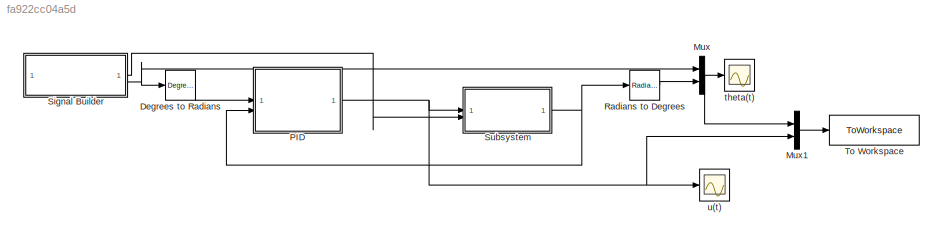
MODEL slx_fa922cc04a5d
KIND model
CONFIG AbsTol = auto
CONFIG EnableMultiTasking = off
CONFIG FixedStep = 0.001
CONFIG InitFcn = alpha = 20.70;\nbeta =  1.27;\ngamma = 0.53;
CONFIG MaxStep = auto
CONFIG MinStep = auto
CONFIG RelTol = 1e-3
CONFIG SampleTimeConstraint = Unconstrained
CONFIG SolverName = ode4
CONFIG StartTime = 0.0
CONFIG StopTime = 80
BLOCK [Reference] Degrees to Radians  REF=simulink_extras/Transformations/Degrees to
Radians
  SourceBlock = simulink_extras/Transformations/Degrees to\nRadians
  SourceType = DegreesToRadians
BLOCK [Mux] Mux
  DisplayOption = bar
  Inputs = 2
BLOCK [Mux] Mux1
  DisplayOption = bar
  Inputs = 2
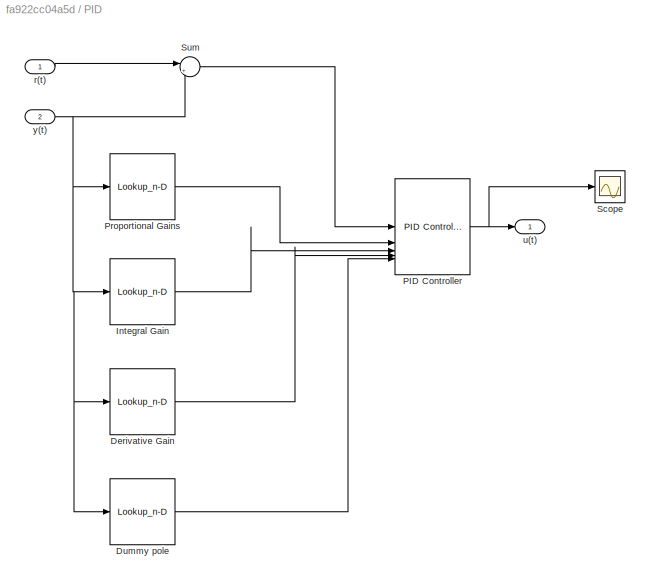
BLOCK [SubSystem] PID
BLOCK [Lookup_n-D] PID/Derivative Gain
  BreakpointsForDimension1 = deg2rad([15 37.5 55 70 85])
  BreakpointsForDimension2 = [-5:5]
  BreakpointsForDimension3 = [-5:5]
  BreakpointsForDimension4 = [-5:5]
  InputPortMap = u0
  InternalRulePriority = Speed
  NumberOfTableDimensions = 1
  RndMeth = Simplest
  Table = [Kd_pid1 Kd_pid2 Kd_pid3 Kd_pid4 Kd_pid5]
BLOCK [Lookup_n-D] PID/Dummy pole
  BreakpointsForDimension1 = deg2rad([15 37.5 55 70 85])
  BreakpointsForDimension2 = [-5:5]
  BreakpointsForDimension3 = [-5:5]
  BreakpointsForDimension4 = [-5:5]
  InputPortMap = u0
  InternalRulePriority = Speed
  NumberOfTableDimensions = 1
  RndMeth = Simplest
  Table = [N_pid1 N_pid2 N_pid3 N_pid4 N_pid5]
BLOCK [Lookup_n-D] PID/Integral Gain
  BreakpointsForDimension1 = deg2rad([15 37.5 55 70 85])
  BreakpointsForDimension2 = [-5:5]
  BreakpointsForDimension3 = [-5:5]
  BreakpointsForDimension4 = [-5:5]
  InputPortMap = u0
  InternalRulePriority = Speed
  NumberOfTableDimensions = 1
  RndMeth = Simplest
  Table = [Ki_pid1 Ki_pid2 Ki_pid3 Ki_pid4 Ki_pid5]
BLOCK [Reference] PID/PID Controller  REF=slpidlib/PID Controller
  SourceBlock = slpidlib/PID Controller
  SourceType = PID 1dof
BLOCK [Lookup_n-D] PID/Proportional Gains
  BreakpointsForDimension1 = deg2rad([15 37.5 55 70 85])
  BreakpointsForDimension2 = [-5:5]
  BreakpointsForDimension3 = [-5:5]
  BreakpointsForDimension4 = [-5:5]
  InputPortMap = u0
  InternalRulePriority = Speed
  NumberOfTableDimensions = 1
  RndMeth = Simplest
  Table = [Kp_pid1 Kp_pid2 Kp_pid3 Kp_pid4 Kp_pid5]
BLOCK [Scope] PID/Scope
  Floating = off
  NumInputPorts = 1
  ScopeSpecificationString = Simulink.scopes.TimeScopeBlockCfg('CurrentConfiguration', extmgr.ConfigurationSet(extmgr.Configuration('Core','General UI',true),extmgr.Configuration('Core','Source UI',true),extmgr.Configuration('Sources','WiredSimulink',true,'DataLoggingVariableName','ScopeData2'),extmgr.Configuration('Visuals','Time Domain',true,'SerializedDisplays',{struct('MinYLimReal','-269.2737','MaxYLimReal','2388.86768','...<+1422ch>
BLOCK [Sum] PID/Sum
  Inputs = |+-
BLOCK [Inport] PID/r(t)
BLOCK [Outport] PID/u(t)
BLOCK [Inport] PID/y(t)
  Port = 2
BLOCK [Reference] Radians to Degrees  REF=simulink_extras/Transformations/Radians
to Degrees
  SourceBlock = simulink_extras/Transformations/Radians\nto Degrees
  SourceType = RadiansToDegrees
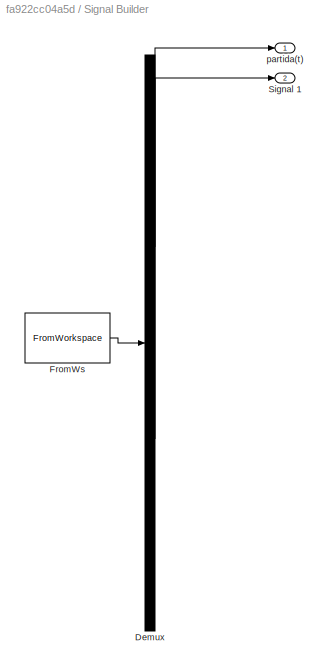
BLOCK [SubSystem] Signal Builder
  ClipboardFcn = sigbuilder_block('clipboard');
  CloseFcn = sigbuilder_block('close');
  ContinueFcn = sigbuilder_block('continue');
  CopyFcn = sigbuilder_block('copy');
  DeleteFcn = sigbuilder_block('delete');
  LoadFcn = sigbuilder_block('load',[5.4 36 1141.2 516.6 ]);
  MaskHideContents = on
  ModelCloseFcn = sigbuilder_block('modelClose');
  NameChangeFcn = sigbuilder_block('namechange');
  OpenFcn = sigbuilder_block('open',[19.8 162 1087.2 352.8 ]);
  PauseFcn = sigbuilder_block('pause');
  PreSaveFcn = sigbuilder_block('preSave');
  StartFcn = sigbuilder_block('start');
  StopFcn = sigbuilder_block('stop');
  Tag = STV Subsys
BLOCK [Demux] Signal Builder/Demux
  DisplayOption = none
  Outputs = 2
  Tag = STV Demux
BLOCK [FromWorkspace] Signal Builder/FromWs
  Tag = STV FromWs
  VariableName = tuvar
BLOCK [Outport] Signal Builder/Signal 1
  Port = 2
  Tag = STV Outport
BLOCK [Outport] Signal Builder/partida(t)
  Tag = STV Outport
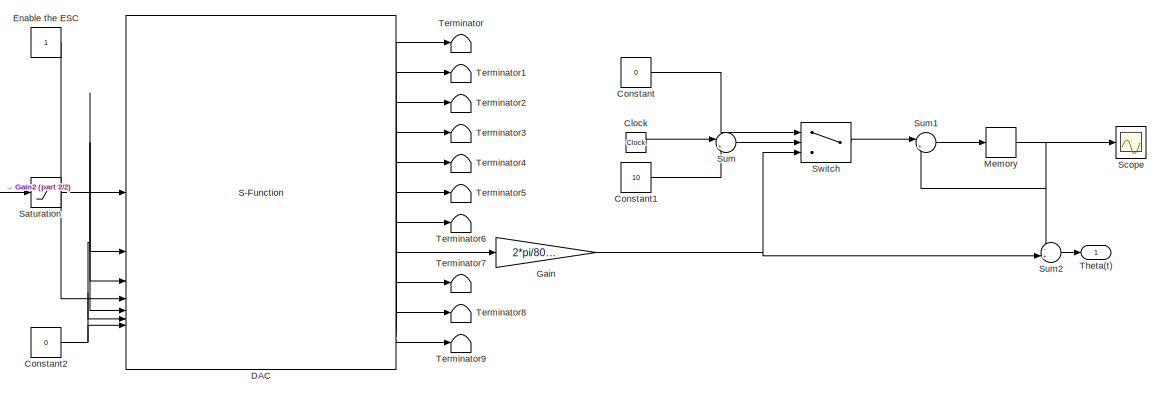
[diagram: Subsystem - part 1/2, right side, full height]
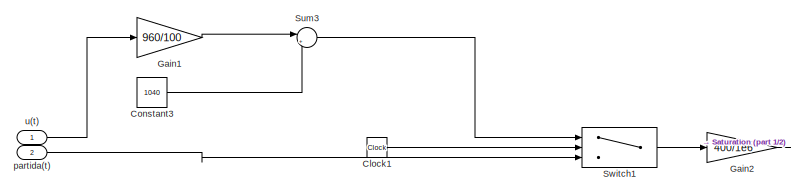
[diagram: Subsystem - part 2/2, middle left region]
BLOCK [SubSystem] Subsystem
BLOCK [Clock] Subsystem/Clock
BLOCK [Clock] Subsystem/Clock1
BLOCK [Constant] Subsystem/Constant
  Value = 0
BLOCK [Constant] Subsystem/Constant1
  Value = 10
BLOCK [Constant] Subsystem/Constant2
  Value = 0
BLOCK [Constant] Subsystem/Constant3
  Value = 1040
BLOCK [S-Function] Subsystem/DAC
  EnableBusSupport = off
  FunctionName = dacSfunction
  Parameters = serialPort,sampleTime,gpioOutCh1FinalState,gpioOutCh2FinalState,gpioOutCh3FinalState,pwmFrequency,pwmCh1FinalDuty,pwmCh2FinalDuty,pwmCh3FinalDuty,pwmCh4FinalDuty,enc1Mode,enc1ResetCount,enc1Direction,enc1Quadrature,enc1Filter,enc2Mode,enc2ResetCount,enc2Direction,enc2Quadrature,enc2Filter,enc3Mode,enc3ResetCount,enc3Direction,enc3Quadrature,enc3Filter
  SFcnIsStateOwnerBlock = off
  SFunctionDeploymentMode = off
BLOCK [Constant] Subsystem/Enable the ESC
BLOCK [Gain] Subsystem/Gain
  Gain = 2*pi/8000
BLOCK [Gain] Subsystem/Gain1
  Gain = 960/100
BLOCK [Gain] Subsystem/Gain2
  Gain = 400/1e6
BLOCK [Memory] Subsystem/Memory
BLOCK [Saturate] Subsystem/Saturation
  LowerLimit = 0
  UpperLimit = 0.8
BLOCK [Scope] Subsystem/Scope
  Floating = off
  NumInputPorts = 1
  ScopeSpecificationString = Simulink.scopes.TimeScopeBlockCfg('CurrentConfiguration', extmgr.ConfigurationSet(extmgr.Configuration('Core','General UI',true),extmgr.Configuration('Core','Source UI',true),extmgr.Configuration('Sources','WiredSimulink',true),extmgr.Configuration('Visuals','Time Domain',true),extmgr.Configuration('Tools','Plot Navigation',true),extmgr.Configuration('Tools','Measurements',true)),'Version','2022a'...<+1ch>
BLOCK [Sum] Subsystem/Sum
  Inputs = |+-
BLOCK [Sum] Subsystem/Sum1
  Inputs = |++
BLOCK [Sum] Subsystem/Sum2
  Inputs = -+|
BLOCK [Sum] Subsystem/Sum3
  Inputs = |++
BLOCK [Switch] Subsystem/Switch
  Criteria = u2 ~= 0
  InputSameDT = off
  SaturateOnIntegerOverflow = off
BLOCK [Switch] Subsystem/Switch1
  InputSameDT = off
  SaturateOnIntegerOverflow = off
  Threshold = 10
BLOCK [Terminator] Subsystem/Terminator
BLOCK [Terminator] Subsystem/Terminator1
BLOCK [Terminator] Subsystem/Terminator2
BLOCK [Terminator] Subsystem/Terminator3
BLOCK [Terminator] Subsystem/Terminator4
BLOCK [Terminator] Subsystem/Terminator5
  NameLocation = left
BLOCK [Terminator] Subsystem/Terminator6
BLOCK [Terminator] Subsystem/Terminator7
BLOCK [Terminator] Subsystem/Terminator8
BLOCK [Terminator] Subsystem/Terminator9
BLOCK [Outport] Subsystem/Theta(t)
BLOCK [Inport] Subsystem/partida(t)
  Port = 2
BLOCK [Inport] Subsystem/u(t)
BLOCK [ToWorkspace] To Workspace
  FixptAsFi = on
  MaxDataPoints = inf
  SampleTime = -1
  SaveFormat = Timeseries
  VariableName = Data
BLOCK [Scope] theta(t)
  Floating = off
  NumInputPorts = 1
  ScopeSpecificationString = Simulink.scopes.TimeScopeBlockCfg('CurrentConfiguration', extmgr.ConfigurationSet(extmgr.Configuration('Core','General UI',true),extmgr.Configuration('Core','Source UI',true),extmgr.Configuration('Sources','WiredSimulink',true,'DataLoggingVariableName','ScopeData1','DataLoggingSaveFormat','Array','DataLoggingDecimation','1','DataLoggingDecimateData',true),extmgr.Configuration('Visuals','Time Domai...<+1740ch>
BLOCK [Scope] u(t)
  Floating = off
  NumInputPorts = 1
  ScopeSpecificationString = Simulink.scopes.TimeScopeBlockCfg('CurrentConfiguration', extmgr.ConfigurationSet(extmgr.Configuration('Core','General UI',true),extmgr.Configuration('Core','Source UI',true),extmgr.Configuration('Sources','WiredSimulink',true,'DataLoggingSaveFormat','Array','DataLoggingDecimation','1','DataLoggingDecimateData',true),extmgr.Configuration('Visuals','Time Domain',true,'SerializedDisplays',{struct('M...<+1619ch>
LINE Degrees to Radians:1 -> PID:1
LINE Mux1:1 -> To Workspace:1
NET Mux:1 -> Mux1:1, theta(t):1
LINE PID/Derivative Gain:1 -> PID/PID Controller:4
LINE PID/Dummy pole:1 -> PID/PID Controller:5
LINE PID/Integral Gain:1 -> PID/PID Controller:3
NET PID/PID Controller:1 -> PID/Scope:1, PID/u(t):1
LINE PID/Proportional Gains:1 -> PID/PID Controller:2
LINE PID/Sum:1 -> PID/PID Controller:1
LINE PID/r(t):1 -> PID/Sum:1
NET PID/y(t):1 -> PID/Derivative Gain:1, PID/Dummy pole:1, PID/Integral Gain:1, PID/Proportional Gains:1, PID/Sum:2
NET PID:1 -> Mux1:2, Subsystem:1, u(t):1
LINE Radians to Degrees:1 -> Mux:2
LINE Signal Builder:1 -> Subsystem:2
NET Signal Builder:2 -> Degrees to Radians:1, Mux:1
LINE Subsystem/Clock1:1 -> Subsystem/Switch1:2
LINE Subsystem/Clock:1 -> Subsystem/Sum:1
LINE Subsystem/Constant1:1 -> Subsystem/Sum:2
NET Subsystem/Constant2:1 -> Subsystem/DAC:2, Subsystem/DAC:3, Subsystem/DAC:5, Subsystem/DAC:6, Subsystem/DAC:7
LINE Subsystem/Constant3:1 -> Subsystem/Sum3:2
LINE Subsystem/Constant:1 -> Subsystem/Switch:1
LINE Subsystem/DAC:1 -> Subsystem/Terminator:1
LINE Subsystem/DAC:10 -> Subsystem/Terminator8:1
LINE Subsystem/DAC:11 -> Subsystem/Terminator9:1
LINE Subsystem/DAC:2 -> Subsystem/Terminator1:1
LINE Subsystem/DAC:3 -> Subsystem/Terminator2:1
LINE Subsystem/DAC:4 -> Subsystem/Terminator3:1
LINE Subsystem/DAC:5 -> Subsystem/Terminator4:1
LINE Subsystem/DAC:6 -> Subsystem/Terminator5:1
LINE Subsystem/DAC:7 -> Subsystem/Terminator6:1
LINE Subsystem/DAC:8 -> Subsystem/Gain:1
LINE Subsystem/DAC:9 -> Subsystem/Terminator7:1
LINE Subsystem/Enable the ESC:1 -> Subsystem/DAC:1
LINE Subsystem/Gain1:1 -> Subsystem/Sum3:1
LINE Subsystem/Gain2:1 -> Subsystem/Saturation:1
NET Subsystem/Gain:1 -> Subsystem/Sum2:2, Subsystem/Switch:3
NET Subsystem/Memory:1 -> Subsystem/Scope:1, Subsystem/Sum1:2, Subsystem/Sum2:1
LINE Subsystem/Saturation:1 -> Subsystem/DAC:4
LINE Subsystem/Sum1:1 -> Subsystem/Memory:1
LINE Subsystem/Sum2:1 -> Subsystem/Theta(t):1
LINE Subsystem/Sum3:1 -> Subsystem/Switch1:1
LINE Subsystem/Sum:1 -> Subsystem/Switch:2
LINE Subsystem/Switch1:1 -> Subsystem/Gain2:1
LINE Subsystem/Switch:1 -> Subsystem/Sum1:1
LINE Subsystem/partida(t):1 -> Subsystem/Switch1:3
LINE Subsystem/u(t):1 -> Subsystem/Gain1:1
NET Subsystem:1 -> PID:2, Radians to Degrees:1
note: NET lines group one-source signal fan-out (src -> all destinations, sorted); 1:1 wires keep LINE
